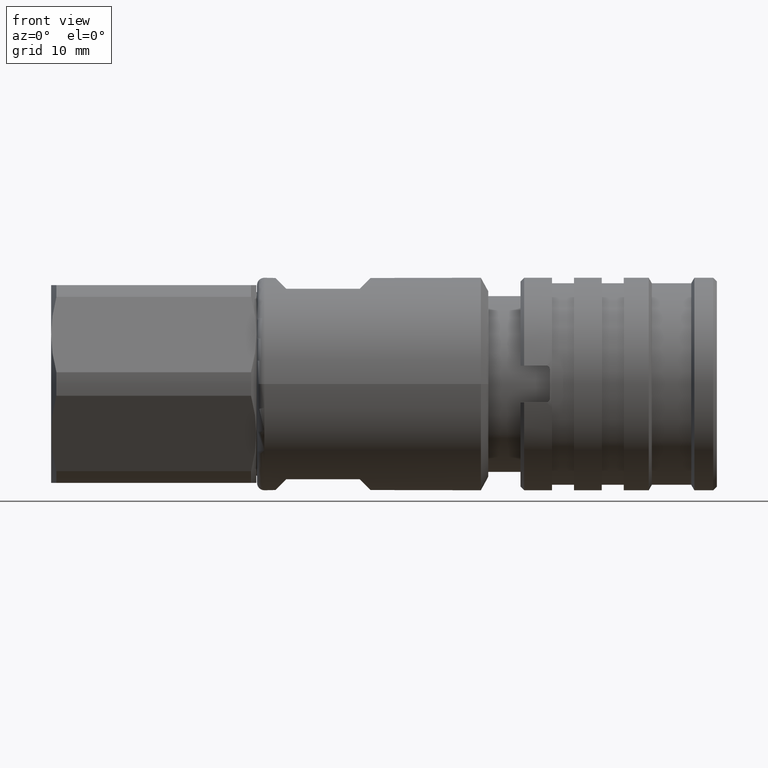
[diagram: clean part render]
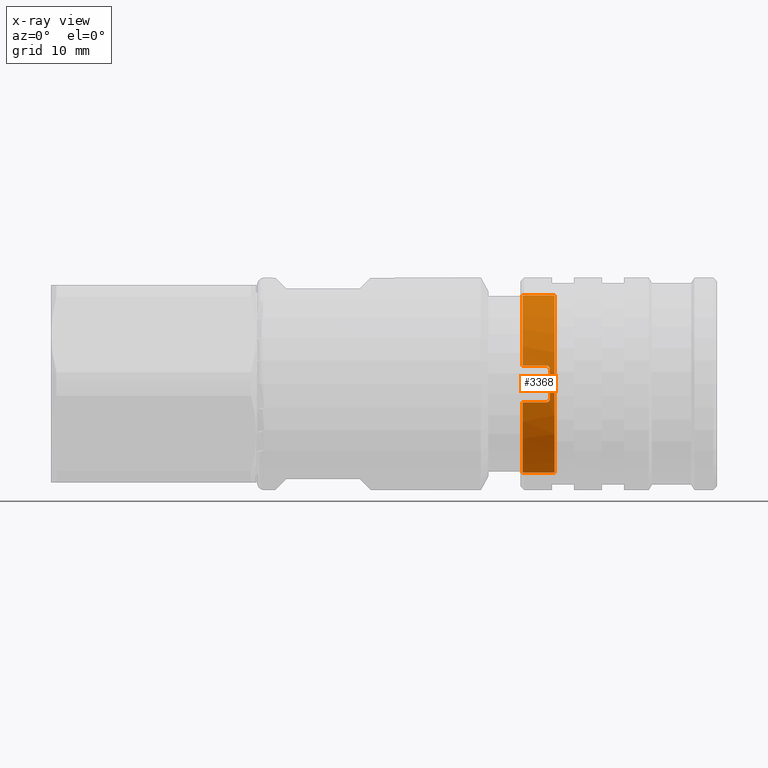
[diagram: x-ray — body ghosted, one internal face saturated and labeled with its STEP entity id]
A machine part, front view, then the same camera in x-ray: the body is ghosted and one INTERNAL B-rep face — a face not visible from any outside direction — is saturated and labeled: STEP entity #3368.
In plain terms, the highlighted cylindrical surface (partial cylindrical patch) has radius 12.1 mm, axis along (-1, -0, -0).
Its self-contained STEP definition (entity closure, byte-faithful):
#15 = CARTESIAN_POINT ( 'NONE',  ( 22.39999999999999900, -11.93356610573721700, -1.999999999999997100 ) ) ;
#16 = CARTESIAN_POINT ( 'NONE',  ( 18.70000000000000300, -9.884099541659373900E-016, 12.10000000000000300 ) ) ;
#17 = CARTESIAN_POINT ( 'NONE',  ( 21.89999999999999900, -11.83891886955900000, 2.499999999999997300 ) ) ;
#19 = CARTESIAN_POINT ( 'NONE',  ( 18.69999999999897300, -11.83891886955033400, 2.499999999999997300 ) ) ;
#22 = CARTESIAN_POINT ( 'NONE',  ( 22.39999999999999900, -11.93356610573721700, 1.999999999999997300 ) ) ;
#23 = CARTESIAN_POINT ( 'NONE',  ( 23.04832569320570100, 4.934126728023603000E-016, -12.10000000000000300 ) ) ;
#24 = CARTESIAN_POINT ( 'NONE',  ( 18.70000000000000300, 4.934126728023603000E-016, -12.10000000000000300 ) ) ;
#25 = CARTESIAN_POINT ( 'NONE',  ( 23.04832569320570100, -9.884099541659373900E-016, 12.10000000000000300 ) ) ;
#29 = CARTESIAN_POINT ( 'NONE',  ( 18.70000000000000300, -11.83891886955900000, -2.499999999999997300 ) ) ;
#30 = VERTEX_POINT ( 'NONE', #29 ) ;
#34 = VERTEX_POINT ( 'NONE', #25 ) ;
#35 = VERTEX_POINT ( 'NONE', #24 ) ;
#36 = VERTEX_POINT ( 'NONE', #23 ) ;
#37 = VERTEX_POINT ( 'NONE', #22 ) ;
#42 = VERTEX_POINT ( 'NONE', #19 ) ;
#51 = VERTEX_POINT ( 'NONE', #17 ) ;
#52 = VERTEX_POINT ( 'NONE', #16 ) ;
#53 = VERTEX_POINT ( 'NONE', #15 ) ;
#58 = CARTESIAN_POINT ( 'NONE',  ( 21.89999999999999900, -11.83891886955900000, -2.499999999999997300 ) ) ;
#90 = VERTEX_POINT ( 'NONE', #58 ) ;
#377 = DIRECTION ( 'NONE',  ( -1.000000000000000000, -0.0000000000000000000, -0.0000000000000000000 ) ) ;
#378 = CARTESIAN_POINT ( 'NONE',  ( 18.70000000000000300, -9.884099541659373900E-016, 8.296725741381169100E-017 ) ) ;
#379 = DIRECTION ( 'NONE',  ( 0.0000000000000000000, 0.0000000000000000000, 1.000000000000000000 ) ) ;
#383 = DIRECTION ( 'NONE',  ( 0.0000000000000000000, 0.0000000000000000000, -1.000000000000000000 ) ) ;
#384 = DIRECTION ( 'NONE',  ( 1.000000000000000000, 0.0000000000000000000, 0.0000000000000000000 ) ) ;
#385 = DIRECTION ( 'NONE',  ( 0.0000000000000000000, 0.0000000000000000000, 1.000000000000000000 ) ) ;
#386 = CARTESIAN_POINT ( 'NONE',  ( 22.39999999999999900, -9.884099541659373900E-016, 8.296725741381169100E-017 ) ) ;
#387 = CARTESIAN_POINT ( 'NONE',  ( 18.70000000000000300, -9.884099541659373900E-016, 8.296725741381169100E-017 ) ) ;
#388 = DIRECTION ( 'NONE',  ( -1.000000000000000000, -0.0000000000000000000, -0.0000000000000000000 ) ) ;
#389 = CARTESIAN_POINT ( 'NONE',  ( 18.39999999999999900, -9.884099541659373900E-016, 12.10000000000000300 ) ) ;
#390 = CARTESIAN_POINT ( 'NONE',  ( 22.03325502117692400, -11.83891886955900200, 2.499999999999996900 ) ) ;
#391 = CARTESIAN_POINT ( 'NONE',  ( 21.89999999999999900, -11.83891886955900000, 2.499999999999997300 ) ) ;
#392 = CARTESIAN_POINT ( 'NONE',  ( 22.16322576723564800, -11.85085019557271800, 2.444637255265407600 ) ) ;
#393 = CARTESIAN_POINT ( 'NONE',  ( 22.39999999999999900, -11.93356610573721700, 1.999999999999997300 ) ) ;
#394 = CARTESIAN_POINT ( 'NONE',  ( 22.39999999999999500, -11.91155072632403700, 2.131360992785026100 ) ) ;
#395 = CARTESIAN_POINT ( 'NONE',  ( 22.34679905849927200, -11.88753058526684600, 2.259539389363004200 ) ) ;
#396 = DIRECTION ( 'NONE',  ( -1.000000000000000000, -0.0000000000000000000, -0.0000000000000000000 ) ) ;
#409 = DIRECTION ( 'NONE',  ( -1.000000000000000000, -0.0000000000000000000, -0.0000000000000000000 ) ) ;
#410 = CARTESIAN_POINT ( 'NONE',  ( 18.39999999999999900, -11.83891886955900000, 2.499999999999997300 ) ) ;
#422 = CARTESIAN_POINT ( 'NONE',  ( 22.39999999999999900, -11.93356610573721700, -1.999999999999997100 ) ) ;
#444 = CARTESIAN_POINT ( 'NONE',  ( 22.39999999999999900, -11.91155786258895000, -2.131318412240490900 ) ) ;
#455 = DIRECTION ( 'NONE',  ( -1.000000000000000000, -0.0000000000000000000, -0.0000000000000000000 ) ) ;
#456 = CARTESIAN_POINT ( 'NONE',  ( 23.04832569320570100, -9.884099541659373900E-016, 8.296725741381169100E-017 ) ) ;
#460 = DIRECTION ( 'NONE',  ( 0.0000000000000000000, 0.0000000000000000000, -1.000000000000000000 ) ) ;
#461 = CARTESIAN_POINT ( 'NONE',  ( 22.34650160516045100, -11.88744837909848300, -2.259963989410279900 ) ) ;
#476 = CARTESIAN_POINT ( 'NONE',  ( 21.89999999999999900, -11.83891886955900000, -2.499999999999997300 ) ) ;
#504 = CARTESIAN_POINT ( 'NONE',  ( 22.16304751465557700, -11.85083740850131000, -2.444691988048463700 ) ) ;
#505 = DIRECTION ( 'NONE',  ( -1.000000000000000000, -0.0000000000000000000, -0.0000000000000000000 ) ) ;
#514 = CARTESIAN_POINT ( 'NONE',  ( 18.39999999999999900, -11.83891886955900000, -2.499999999999997300 ) ) ;
#519 = CARTESIAN_POINT ( 'NONE',  ( 18.39999999999999900, 4.934126728023603000E-016, -12.10000000000000300 ) ) ;
#522 = DIRECTION ( 'NONE',  ( -1.000000000000000000, -0.0000000000000000000, -0.0000000000000000000 ) ) ;
#524 = CARTESIAN_POINT ( 'NONE',  ( 22.03321274865398400, -11.83891886955899900, -2.499999999999997800 ) ) ;
#1004 = ORIENTED_EDGE ( 'NONE', *, *, #2733, .T. ) ;
#1006 = ORIENTED_EDGE ( 'NONE', *, *, #2732, .F. ) ;
#1008 = ORIENTED_EDGE ( 'NONE', *, *, #2730, .T. ) ;
#1017 = ORIENTED_EDGE ( 'NONE', *, *, #2726, .T. ) ;
#1019 = ORIENTED_EDGE ( 'NONE', *, *, #2734, .T. ) ;
#1024 = ORIENTED_EDGE ( 'NONE', *, *, #2727, .T. ) ;
#1031 = ORIENTED_EDGE ( 'NONE', *, *, #2728, .F. ) ;
#1033 = ORIENTED_EDGE ( 'NONE', *, *, #2746, .F. ) ;
#1037 = ORIENTED_EDGE ( 'NONE', *, *, #2724, .T. ) ;
#1039 = ORIENTED_EDGE ( 'NONE', *, *, #2731, .F. ) ;
#1094 = LINE ( 'NONE', #519, #1096 ) ;
#1096 = VECTOR ( 'NONE', #377, 1000.000000000000000 ) ;
#1097 = LINE ( 'NONE', #514, #1099 ) ;
#1098 = CIRCLE ( 'NONE', #3050, 12.10000000000000300 ) ;
#1099 = VECTOR ( 'NONE', #505, 1000.000000000000000 ) ;
#1101 = CIRCLE ( 'NONE', #3052, 12.10000000000000300 ) ;
#1102 = LINE ( 'NONE', #389, #1104 ) ;
#1103 = CIRCLE ( 'NONE', #3053, 12.10000000000000300 ) ;
#1104 = VECTOR ( 'NONE', #396, 1000.000000000000000 ) ;
#1105 = LINE ( 'NONE', #410, #1106 ) ;
#1106 = VECTOR ( 'NONE', #409, 1000.000000000000000 ) ;
#1115 = CIRCLE ( 'NONE', #3057, 12.10000000000000300 ) ;
#1759 = FACE_OUTER_BOUND ( 'NONE', #2650, .T. ) ;
#1760 = CYLINDRICAL_SURFACE ( 'NONE', #3220, 12.10000000000000300 ) ;
#2650 = EDGE_LOOP ( 'NONE', ( #1033, #1017, #1024, #1031, #1037, #1039, #1004, #1019, #1008, #1006 ) ) ;
#2724 = EDGE_CURVE ( 'NONE', #90, #53, #3798, .T. ) ;
#2726 = EDGE_CURVE ( 'NONE', #36, #35, #1094, .T. ) ;
#2727 = EDGE_CURVE ( 'NONE', #35, #30, #1098, .T. ) ;
#2728 = EDGE_CURVE ( 'NONE', #90, #30, #1097, .T. ) ;
#2730 = EDGE_CURVE ( 'NONE', #42, #52, #1101, .T. ) ;
#2731 = EDGE_CURVE ( 'NONE', #37, #53, #1103, .T. ) ;
#2732 = EDGE_CURVE ( 'NONE', #34, #52, #1102, .T. ) ;
#2733 = EDGE_CURVE ( 'NONE', #37, #51, #3799, .T. ) ;
#2734 = EDGE_CURVE ( 'NONE', #51, #42, #1105, .T. ) ;
#2746 = EDGE_CURVE ( 'NONE', #36, #34, #1115, .T. ) ;
#3050 = AXIS2_PLACEMENT_3D ( 'NONE', #378, #522, #379 ) ;
#3052 = AXIS2_PLACEMENT_3D ( 'NONE', #387, #388, #385 ) ;
#3053 = AXIS2_PLACEMENT_3D ( 'NONE', #386, #384, #383 ) ;
#3057 = AXIS2_PLACEMENT_3D ( 'NONE', #456, #455, #460 ) ;
#3220 = AXIS2_PLACEMENT_3D ( 'NONE', #4096, #4094, #4095 ) ;
#3368 = ADVANCED_FACE ( 'NONE', ( #1759 ), #1760, .F. ) ;
#3798 = B_SPLINE_CURVE_WITH_KNOTS ( 'NONE', 3,
 ( #476, #524, #504, #461, #444, #422 ),
 .UNSPECIFIED., .F., .F.,
 ( 4, 2, 4 ),
 ( 0.0000000000000000000, 0.0003939072000835659600, 0.0007878144001671319200 ),
 .UNSPECIFIED. ) ;
#3799 = B_SPLINE_CURVE_WITH_KNOTS ( 'NONE', 3,
 ( #393, #394, #395, #392, #390, #391 ),
 .UNSPECIFIED., .F., .F.,
 ( 4, 2, 4 ),
 ( 0.0000000000000000000, 0.0003939096492227238200, 0.0007878192984454476500 ),
 .UNSPECIFIED. ) ;
#4094 = DIRECTION ( 'NONE',  ( -1.000000000000000000, -0.0000000000000000000, -0.0000000000000000000 ) ) ;
#4095 = DIRECTION ( 'NONE',  ( 0.0000000000000000000, 0.0000000000000000000, 1.000000000000000000 ) ) ;
#4096 = CARTESIAN_POINT ( 'NONE',  ( 18.39999999999999900, -9.884099541659373900E-016, 8.296725741381169100E-017 ) ) ;